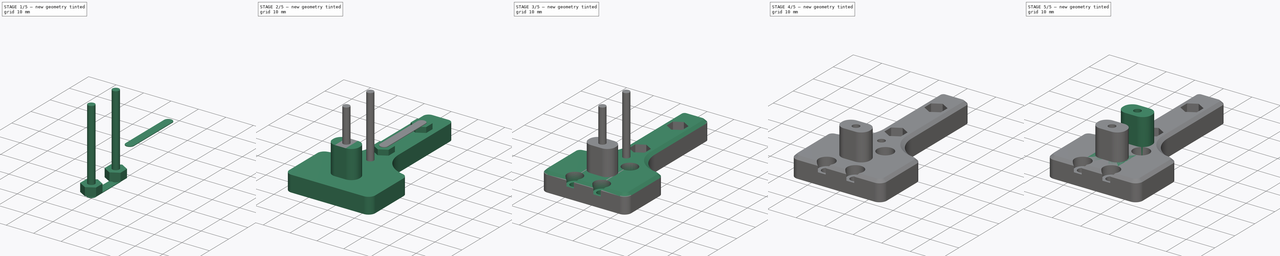
[diagram: build sequence overview — one tinted view per stage of 5, left to right]
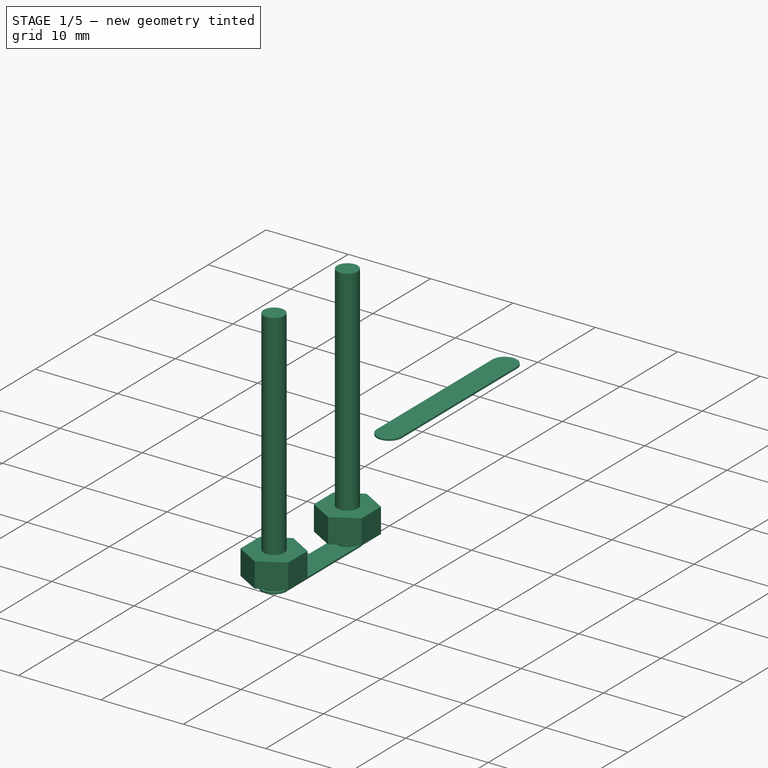
[diagram: stage 1 of 5 — iso view after this stage's code; geometry added in this stage tinted green]
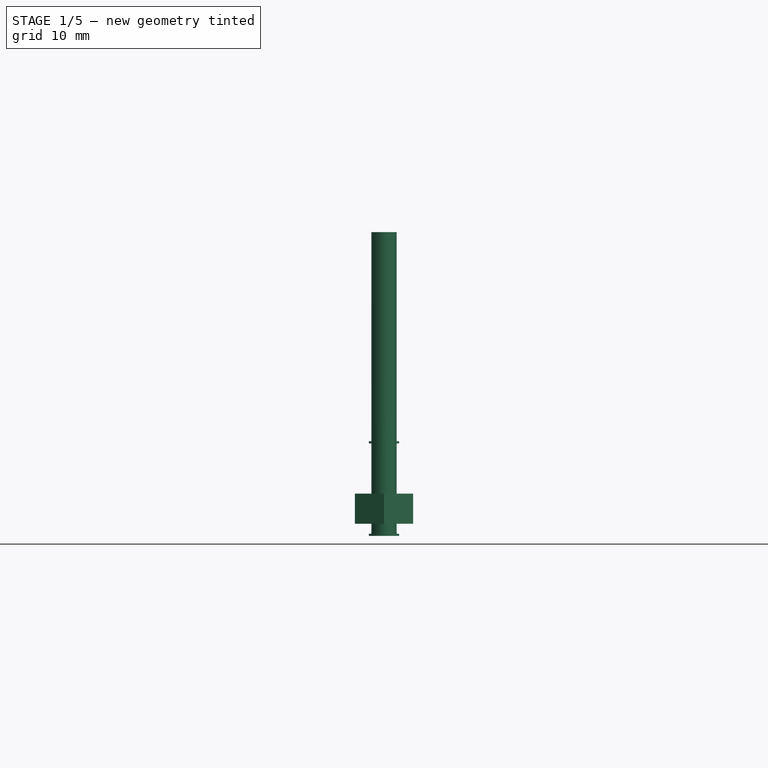
[diagram: stage 1 of 5 — front view after this stage's code; geometry added in this stage tinted green]
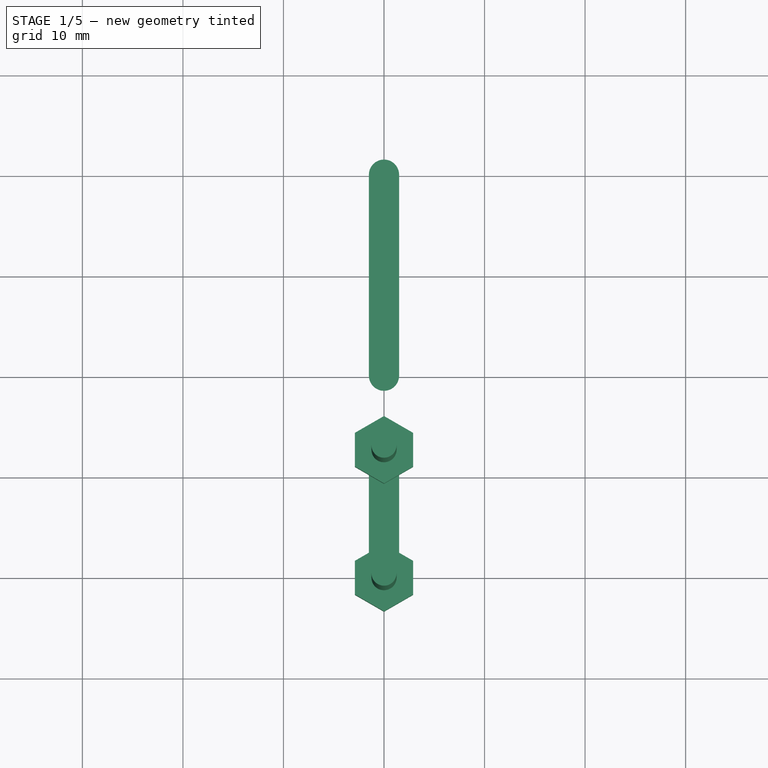
[diagram: stage 1 of 5 — top view after this stage's code; geometry added in this stage tinted green]
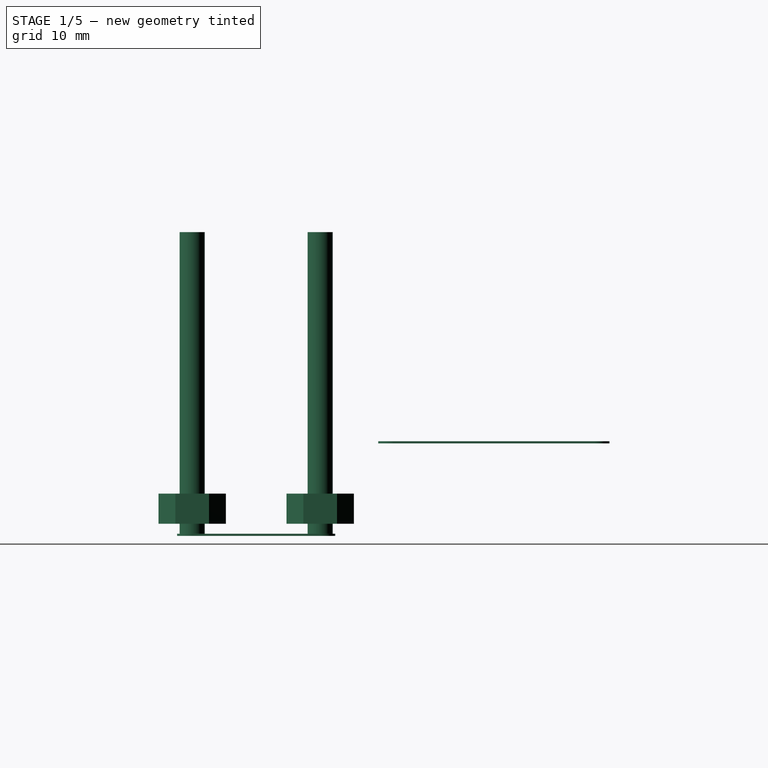
[diagram: stage 1 of 5 — right view after this stage's code; geometry added in this stage tinted green]
FCSTD DOCUMENT  (FreeCAD 0.20R29177 (Git))
Label: miniXY-XYCarriage
License: All rights reserved
LicenseURL: http://en.wikipedia.org/wiki/All_rights_reserved
objects: PartDesign::CoordinateSystem×10, Sketcher::SketchObject×10, PartDesign::Body×9, PartDesign::Pad×7, PartDesign::Boolean×7, App::Part×5, PartDesign::AdditivePrism×4, PartDesign::ShapeBinder×4, App::DocumentObjectGroup×3, App::Link×3, PartDesign::Hole×2, Part::FeaturePython×2, App::FeaturePython×1, PartDesign::AdditiveLoft×1
note: 70 computed .brp shape members not serialized (recipe doc carries the construction recipe); baked Part::Feature solids carry a one-line shape summary decoded from their .brp

FEATURE [PartDesign::Body] Body007  label="IdlerNutHoleSupport"
  Group = -> [Pad003,Sketch007]
  Origin = -> Origin012
  Tip = -> Pad003
FEATURE [Sketcher::SketchObject] Sketch008
  AttachmentOffset = pos=(0,0,-1) rot=(0,0,1;0rad)
  FullyConstrained = true
  MapMode = 5
  Placement = pos=(0,0,-1) rot=(0,0,1;0rad)
  Support = -> [XY_Plane011]
  expr: Constraints[8] = <<Variables>>.IdlerDiameter
  sketch-geometry (4):
    g0: ArcOfCircle CenterX=0 CenterY=0 CenterZ=0 NormalX=0 NormalY=0 NormalZ=1 AngleXU=0 Radius=1.5 StartAngle=3.14159 EndAngle=6.28319
    g1: ArcOfCircle CenterX=0 CenterY=12.73 CenterZ=0 NormalX=0 NormalY=0 NormalZ=1 AngleXU=0 Radius=1.5 StartAngle=2e-16 EndAngle=3.14159
    g2: LineSegment StartX=-1.5 StartY=12.73 StartZ=0 EndX=-1.5 EndY=0 EndZ=0
    g3: LineSegment StartX=1.5 StartY=12.73 StartZ=0 EndX=1.5 EndY=0 EndZ=0
  constraints (9):
    c: Coincident(g0,g-1)
    c: PointOnObject(g1,g-2)
    c: Tangent(g1,g2) = -1.5708
    c: Tangent(g1,g3) = 1.5708
    c: Tangent(g2,g0) = -1.5708
    c: Tangent(g3,g0) = 1.5708
    c: Equal(g0,g1)
    c: Diameter(g0) = 3
    c: DistanceY(g1) = 12.73
FEATURE [PartDesign::Pad] Pad004
  Direction = (0,0,1)
  Length = 0.2
  Length2 = 10
  Profile = -> Sketch008
  ReferenceAxis = -> Sketch008 [N_Axis]
  Reversed = true
  Type = 0
FEATURE [PartDesign::Pad] Pad005
  BaseFeature = -> Pad004
  Direction = (0,0,1)
  Length = 30
  Length2 = 10
  Profile = -> Sketch003
  ReferenceAxis = -> Sketch003 [N_Axis]
  Type = 0
FEATURE [PartDesign::AdditivePrism] Prism
  AttacherType = Attacher::AttachEngine3D
  AttachmentOffset = pos=(0,0,0) rot=(0,0,1;1.5708rad)
  BaseFeature = -> Pad005
  Circumradius = 3.35
  FirstAngle = 0
  Height = 3
  MapMode = 2
  Placement = pos=(0,0,0) rot=(0,0,1;1.5708rad)
  Polygon = 6
  SecondAngle = 0
  Support = -> [X_Axis011]
FEATURE [PartDesign::AdditivePrism] Prism001
  AttacherType = Attacher::AttachEngine3D
  AttachmentOffset = pos=(0,12.73,0) rot=(0,0,1;1.5708rad)
  BaseFeature = -> Prism
  Circumradius = 3.35
  FirstAngle = 0
  Height = 3
  MapMode = 2
  Placement = pos=(0,12.73,0) rot=(0,0,1;1.5708rad)
  Polygon = 6
  SecondAngle = 0
  Support = -> [X_Axis011]
  expr: .AttachmentOffset.Base.y = <<Variables>>.IdlerDiameter
FEATURE [PartDesign::Body] Body006  label="IdlerNutHoles"
  Group = -> [Pad004,Pad005,Prism,Sketch003,Sketch008,Prism001]
  Origin = -> Origin011
  Tip = -> Prism001
FEATURE [Sketcher::SketchObject] Sketch009
  AttachmentOffset = pos=(0,0,8) rot=(0,0,1;0rad)
  FullyConstrained = true
  MapMode = 5
  Placement = pos=(0,0,8) rot=(0,0,1;0rad)
  Support = -> [XY_Plane013]
  expr: .AttachmentOffset.Base.z = <<Variables>>.CarriageThickness + 1
  sketch-geometry (4):
    g0: ArcOfCircle CenterX=0 CenterY=40 CenterZ=0 NormalX=0 NormalY=0 NormalZ=1 AngleXU=0 Radius=1.5 StartAngle=-1.91456e-11 EndAngle=3.14159
    g1: ArcOfCircle CenterX=0 CenterY=20 CenterZ=0 NormalX=0 NormalY=0 NormalZ=1 AngleXU=0 Radius=1.5 StartAngle=3.14159 EndAngle=6.28319
    g2: LineSegment StartX=-1.5 StartY=40 StartZ=0 EndX=-1.5 EndY=20 EndZ=0
    g3: LineSegment StartX=1.5 StartY=20 StartZ=0 EndX=1.5 EndY=40 EndZ=0
  constraints (10):
    c: PointOnObject(g0,g-2)
    c: PointOnObject(g1,g-2)
    c: Tangent(g2,g0) = -1.5708
    c: Tangent(g0,g3) = -1.5708
    c: Tangent(g2,g1) = -1.5708
    c: Tangent(g3,g1) = -1.5708
    c: Equal(g0,g1)
    c: Diameter(g0) = 3
    c: DistanceY(g1) = 20
    c: DistanceY(g1,g0) = 20
FEATURE [PartDesign::Pad] Pad006
  Direction = (0,0,1)
  Length = 0.2
  Length2 = 10
  Profile = -> Sketch009
  ReferenceAxis = -> Sketch009 [N_Axis]
  Type = 0
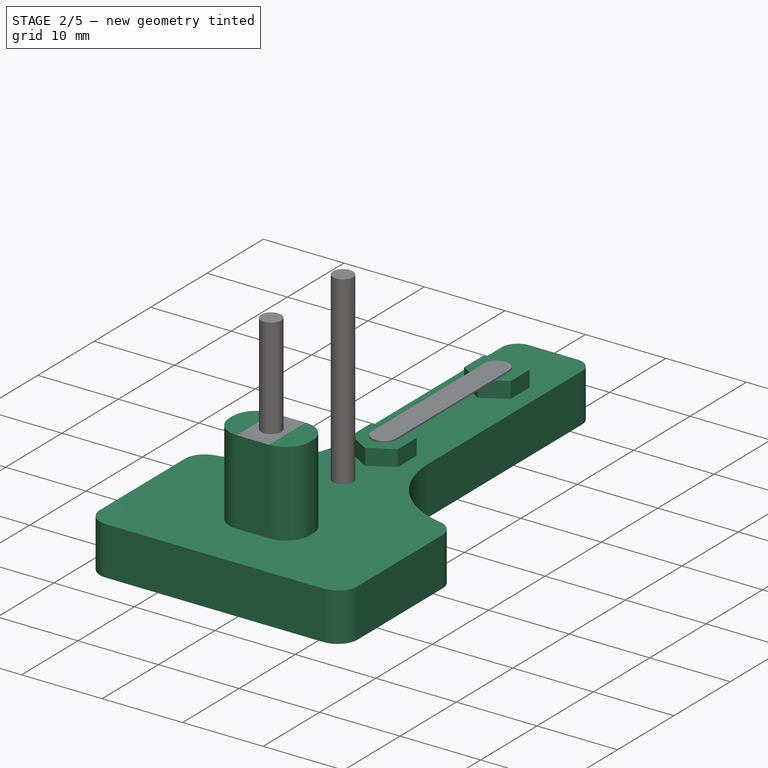
[diagram: stage 2 of 5 — iso view after this stage's code; geometry added in this stage tinted green]
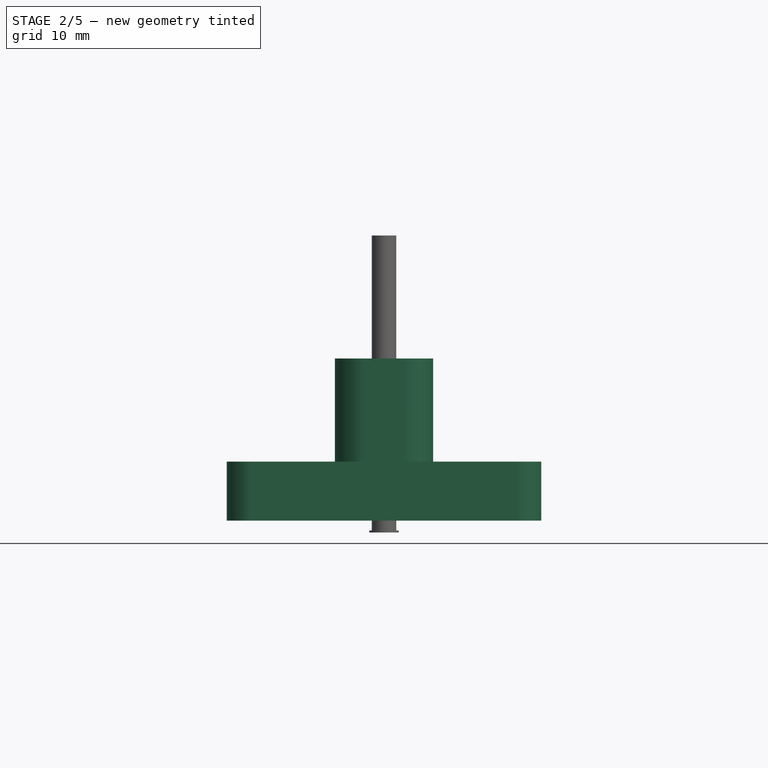
[diagram: stage 2 of 5 — front view after this stage's code; geometry added in this stage tinted green]
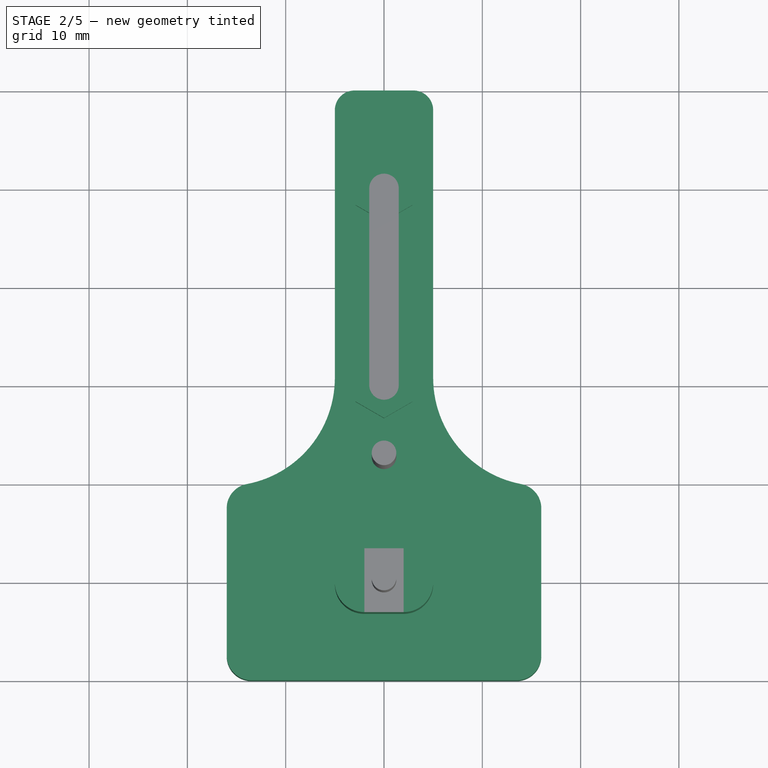
[diagram: stage 2 of 5 — top view after this stage's code; geometry added in this stage tinted green]
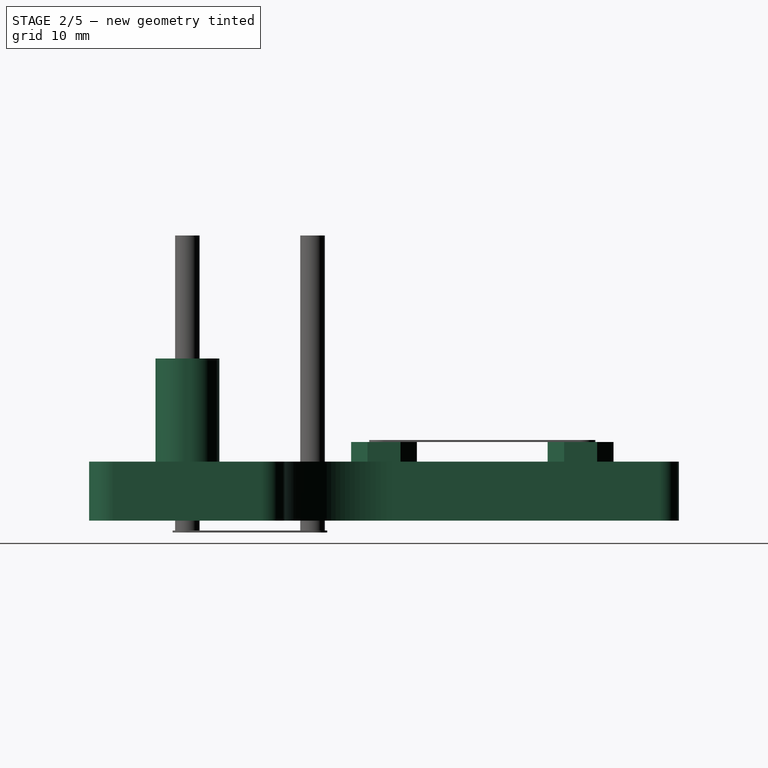
[diagram: stage 2 of 5 — right view after this stage's code; geometry added in this stage tinted green]
FEATURE [PartDesign::Body] Body001  label="CarriageBaseBrace"
  Origin = -> Origin002
FEATURE [PartDesign::Body] Body003  label="CarriageLeftBrace"
  Origin = -> Origin005
FEATURE [PartDesign::CoordinateSystem] LCS_Origin
  AttacherType = Attacher::AttachEngine3D
  MapMode = 2
  Support = -> [X_Axis006]
FEATURE [App::DocumentObjectGroup] Constraints
FEATURE [App::FeaturePython] Variables  # WARN: FeaturePython — macro-defined, semantics opaque (R4)
  CarriageThickness = 7
  GantorySpacing = 200
  IdlerDiameter = 12.73
  IdlerHeight = 8.5
  Type = App::PropertyContainer
  WasherThickness = 0.5
FEATURE [App::DocumentObjectGroup] Configurations
FEATURE [PartDesign::CoordinateSystem] LCS_CarriageLeftPosition
  AttacherType = Attacher::AttachEngine3D
  AttachmentOffset = pos=(-100,0,0) rot=(0,0,1;0rad)
  MapMode = 2
  Placement = pos=(-100,0,0) rot=(0,0,1;0rad)
  Support = -> [X_Axis014]
  expr: .AttachmentOffset.Base.x = -<<Variables>>.GantorySpacing / 2
FEATURE [PartDesign::CoordinateSystem] LCS_CarriageRightPosition
  AttacherType = Attacher::AttachEngine3D
  AttachmentOffset = pos=(100,0,0) rot=(0,0,1;0rad)
  MapMode = 2
  Placement = pos=(100,0,0) rot=(0,0,1;0rad)
  Support = -> [X_Axis014]
  expr: .AttachmentOffset.Base.x = <<Variables>>.GantorySpacing / 2
FEATURE [Sketcher::SketchObject] Sketch
  AttachmentOffset = pos=(0,0,6) rot=(0,0,1;0rad)
  FullyConstrained = true
  MapMode = 5
  Placement = pos=(0,0,6) rot=(0,0,1;0rad)
  Support = -> [XY_Plane001]
  expr: .AttachmentOffset.Base.z = <<Variables>>.CarriageThickness - 1
  sketch-geometry (18):
    g0: LineSegment StartX=-16 StartY=-7.5 StartZ=0 EndX=-16 EndY=7.5 EndZ=0
    g1: LineSegment StartX=16 StartY=7.5 StartZ=0 EndX=16 EndY=-7.5 EndZ=0
    g2: LineSegment StartX=13.5 StartY=-10 StartZ=0 EndX=-13.5 EndY=-10 EndZ=0
    g3: LineSegment StartX=-5 StartY=20.7665 StartZ=0 EndX=-5 EndY=48 EndZ=0
    g4: LineSegment StartX=-3 StartY=50 StartZ=0 EndX=3 EndY=50 EndZ=0
    g5: LineSegment StartX=5 StartY=48 StartZ=0 EndX=5 EndY=20.7665 EndZ=0
    g6: ArcOfCircle CenterX=-13.5 CenterY=-7.5 CenterZ=0 NormalX=0 NormalY=0 NormalZ=1 AngleXU=0 Radius=2.5 StartAngle=3.14159 EndAngle=4.71239
    g7: GeomPoint X=-16 Y=-10 Z=0
    g8: ArcOfCircle CenterX=13.5 CenterY=-7.5 CenterZ=0 NormalX=0 NormalY=0 NormalZ=1 AngleXU=0 Radius=2.5 StartAngle=4.71239 EndAngle=6.28319
    g9: GeomPoint X=16 Y=-10 Z=0
    g10: ArcOfCircle CenterX=13.5 CenterY=7.5 CenterZ=0 NormalX=0 NormalY=0 NormalZ=1 AngleXU=0 Radius=2.5 StartAngle=0 EndAngle=1.38454
    g11: ArcOfCircle CenterX=16 CenterY=20.7665 CenterZ=0 NormalX=0 NormalY=0 NormalZ=1 AngleXU=0 Radius=11 StartAngle=3.14159 EndAngle=4.52613
    g12: ArcOfCircle CenterX=-16 CenterY=20.7665 CenterZ=0 NormalX=0 NormalY=0 NormalZ=1 AngleXU=0 Radius=11 StartAngle=4.89865 EndAngle=6.28319
    g13: ArcOfCircle CenterX=-13.5 CenterY=7.5 CenterZ=0 NormalX=0 NormalY=0 NormalZ=1 AngleXU=0 Radius=2.5 StartAngle=1.75706 EndAngle=3.14159
    g14: ArcOfCircle CenterX=-3 CenterY=48 CenterZ=0 NormalX=0 NormalY=0 NormalZ=1 AngleXU=0 Radius=2 StartAngle=1.5708 EndAngle=3.14159
    g15: GeomPoint X=-5 Y=50 Z=0
    g16: ArcOfCircle CenterX=3 CenterY=48 CenterZ=0 NormalX=0 NormalY=0 NormalZ=1 AngleXU=0 Radius=2 StartAngle=-2.771e-13 EndAngle=1.5708
    g17: GeomPoint X=5 Y=50 Z=0
  constraints (39):
    c: PointOnObject(g7,g0)
    c: PointOnObject(g7,g2)
    c: Tangent(g0,g6) = 1.5708
    c: Tangent(g2,g6) = 1.5708
    c: PointOnObject(g9,g2)
    c: PointOnObject(g9,g1)
    c: Tangent(g2,g8) = 1.5708
    c: Tangent(g1,g8) = 1.5708
    c: Tangent(g1,g10) = 1.5708
    c: Tangent(g5,g11) = -1.5708
    c: Tangent(g3,g12) = -1.5708
    c: Tangent(g0,g13) = 1.5708
    c: PointOnObject(g15,g3)
    c: PointOnObject(g15,g4)
    c: Tangent(g3,g14) = 1.5708
    c: Tangent(g4,g14) = 1.5708
    c: PointOnObject(g17,g4)
    c: PointOnObject(g17,g5)
    c: Tangent(g4,g16) = 1.5708
    c: Tangent(g5,g16) = 1.5708
    c: Equal(g6,g13)
    c: Equal(g6,g8)
    c: Equal(g14,g16)
    c: Tangent(g13,g12) = 1.5708
    c: Tangent(g10,g11) = 1.5708
    c: PointOnObject(g12,g0)
    c: Radius(g14) = 2
    c: Radius(g6) = 2.5
    c: Symmetric(g14,g16,g-2)
    c: Symmetric(g6,g8,g-2)
    c: Symmetric(g13,g6,g-1)
    c: Symmetric(g13,g10,g-2)
    c: DistanceX(g14,g16) = 6
    c: DistanceY(g14) = 48
    c: Symmetric(g12,g11,g-2)
    c: DistanceY(g6,g13) = 15
    c: DistanceX(g6,g8) = 27
    c: Vertical(g3)
    c: Equal(g6,g10)
FEATURE [Sketcher::SketchObject] Sketch001
  AttachmentOffset = pos=(0,0,7) rot=(0,0,1;0rad)
  FullyConstrained = true
  MapMode = 5
  Placement = pos=(0,0,7) rot=(0,0,1;0rad)
  Support = -> [XY_Plane001]
  expr: .AttachmentOffset.Base.z = <<Variables>>.CarriageThickness
  expr: Constraints[26] = Sketch.Constraints[26] - 1mm
  expr: Constraints[27] = Sketch.Constraints[27] - 1mm
  expr: Constraints[32] = Sketch.Constraints[32]
  expr: Constraints[33] = Sketch.Constraints[33]
  expr: Constraints[35] = Sketch.Constraints[35]
  expr: Constraints[36] = Sketch.Constraints[36]
  sketch-geometry (18):
    g0: LineSegment StartX=-15 StartY=-7.5 StartZ=0 EndX=-15 EndY=7.5 EndZ=0
    g1: LineSegment StartX=15 StartY=7.5 StartZ=0 EndX=15 EndY=-7.5 EndZ=0
    g2: LineSegment StartX=13.5 StartY=-9 StartZ=0 EndX=-13.5 EndY=-9 EndZ=0
    g3: LineSegment StartX=-4 StartY=19.9097 StartZ=0 EndX=-4 EndY=48 EndZ=0
    g4: LineSegment StartX=-3 StartY=49 StartZ=0 EndX=3 EndY=49 EndZ=0
    g5: LineSegment StartX=4 StartY=48 StartZ=0 EndX=4 EndY=19.9097 EndZ=0
    g6: ArcOfCircle CenterX=-13.5 CenterY=-7.5 CenterZ=0 NormalX=0 NormalY=0 NormalZ=1 AngleXU=0 Radius=1.5 StartAngle=3.14159 EndAngle=4.71239
    g7: GeomPoint X=-15 Y=-9 Z=0
    g8: ArcOfCircle CenterX=13.5 CenterY=-7.5 CenterZ=0 NormalX=0 NormalY=0 NormalZ=1 AngleXU=0 Radius=1.5 StartAngle=4.71239 EndAngle=6.28319
    g9: GeomPoint X=15 Y=-9 Z=0
    g10: ArcOfCircle CenterX=13.5 CenterY=7.5 CenterZ=0 NormalX=0 NormalY=0 NormalZ=1 AngleXU=0 Radius=1.5 StartAngle=1e-16 EndAngle=1.45051
    g11: ArcOfCircle CenterX=15 CenterY=19.9097 CenterZ=0 NormalX=0 NormalY=0 NormalZ=1 AngleXU=0 Radius=11 StartAngle=3.14159 EndAngle=4.5921
    g12: ArcOfCircle CenterX=-15 CenterY=19.9097 CenterZ=0 NormalX=0 NormalY=0 NormalZ=1 AngleXU=0 Radius=11 StartAngle=4.83268 EndAngle=6.28319
    g13: ArcOfCircle CenterX=-13.5 CenterY=7.5 CenterZ=0 NormalX=0 NormalY=0 NormalZ=1 AngleXU=0 Radius=1.5 StartAngle=1.69109 EndAngle=3.14159
    g14: ArcOfCircle CenterX=-3 CenterY=48 CenterZ=0 NormalX=0 NormalY=0 NormalZ=1 AngleXU=0 Radius=1 StartAngle=1.5708 EndAngle=3.14159
    g15: GeomPoint X=-4 Y=49 Z=0
    g16: ArcOfCircle CenterX=3 CenterY=48 CenterZ=0 NormalX=0 NormalY=0 NormalZ=1 AngleXU=0 Radius=1 StartAngle=1e-16 EndAngle=1.5708
    g17: GeomPoint X=4 Y=49 Z=0
  constraints (39):
    c: PointOnObject(g7,g0)
    c: PointOnObject(g7,g2)
    c: Tangent(g0,g6) = 1.5708
    c: Tangent(g2,g6) = 1.5708
    c: PointOnObject(g9,g2)
    c: PointOnObject(g9,g1)
    c: Tangent(g2,g8) = 1.5708
    c: Tangent(g1,g8) = 1.5708
    c: Tangent(g1,g10) = 1.5708
    c: Tangent(g5,g11) = -1.5708
    c: Tangent(g3,g12) = -1.5708
    c: Tangent(g0,g13) = 1.5708
    c: PointOnObject(g15,g3)
    c: PointOnObject(g15,g4)
    c: Tangent(g3,g14) = 1.5708
    c: Tangent(g4,g14) = 1.5708
    c: PointOnObject(g17,g4)
    c: PointOnObject(g17,g5)
    c: Tangent(g4,g16) = 1.5708
    c: Tangent(g5,g16) = 1.5708
    c: Equal(g6,g13)
    c: Equal(g6,g8)
    c: Equal(g14,g16)
    c: Tangent(g13,g12) = 1.5708
    c: Tangent(g10,g11) = 1.5708
    c: PointOnObject(g12,g0)
    c: Radius(g14) = 1
    c: Radius(g6) = 1.5
    c: Symmetric(g14,g16,g-2)
    c: Symmetric(g6,g8,g-2)
    c: Symmetric(g13,g6,g-1)
    c: Symmetric(g13,g10,g-2)
    c: DistanceX(g14,g16) = 6
    c: DistanceY(g14) = 48
    c: Symmetric(g12,g11,g-2)
    c: DistanceY(g6,g13) = 15
    c: DistanceX(g6,g8) = 27
    c: Vertical(g3)
    c: Equal(g6,g10)
FEATURE [PartDesign::Pad] Pad
  Direction = (0,0,1)
  Length = 6
  Length2 = 10
  Profile = -> Sketch
  ReferenceAxis = -> Sketch [N_Axis]
  Reversed = true
  Type = 0
  expr: Length = <<Variables>>.CarriageThickness - 1
FEATURE [Sketcher::SketchObject] Sketch006
  FullyConstrained = true
  MapMode = 5
  Support = -> [XY_Plane008]
  sketch-geometry (12):
    g0: LineSegment StartX=-2 StartY=3.25 StartZ=0 EndX=2 EndY=3.25 EndZ=0
    g1: LineSegment StartX=5 StartY=0.25 StartZ=0 EndX=5 EndY=-0.25 EndZ=0
    g2: LineSegment StartX=2 StartY=-3.25 StartZ=0 EndX=-2 EndY=-3.25 EndZ=0
    g3: LineSegment StartX=-5 StartY=-0.25 StartZ=0 EndX=-5 EndY=0.25 EndZ=0
    g4: ArcOfCircle CenterX=-2 CenterY=0.25 CenterZ=0 NormalX=0 NormalY=0 NormalZ=1 AngleXU=0 Radius=3 StartAngle=1.5708 EndAngle=3.14159
    g5: GeomPoint X=-5 Y=3.25 Z=0
    g6: ArcOfCircle CenterX=2 CenterY=0.25 CenterZ=0 NormalX=0 NormalY=0 NormalZ=1 AngleXU=0 Radius=3 StartAngle=0 EndAngle=1.5708
    g7: GeomPoint X=5 Y=3.25 Z=0
    g8: ArcOfCircle CenterX=-2 CenterY=-0.25 CenterZ=0 NormalX=0 NormalY=0 NormalZ=1 AngleXU=0 Radius=3 StartAngle=3.14159 EndAngle=4.71239
    g9: GeomPoint X=-5 Y=-3.25 Z=0
    g10: ArcOfCircle CenterX=2 CenterY=-0.25 CenterZ=0 NormalX=0 NormalY=0 NormalZ=1 AngleXU=0 Radius=3 StartAngle=4.71239 EndAngle=6.28319
    g11: GeomPoint X=5 Y=-3.25 Z=0
  constraints (27):
    c: Horizontal(g0)
    c: Horizontal(g2)
    c: Vertical(g1)
    c: Vertical(g3)
    c: PointOnObject(g5,g0)
    c: PointOnObject(g5,g3)
    c: Tangent(g0,g4) = 1.5708
    c: Tangent(g3,g4) = 1.5708
    c: PointOnObject(g7,g0)
    c: PointOnObject(g7,g1)
    c: Tangent(g0,g6) = 1.5708
    c: Tangent(g1,g6) = 1.5708
    c: PointOnObject(g9,g2)
    c: PointOnObject(g9,g3)
    c: Tangent(g2,g8) = 1.5708
    c: Tangent(g3,g8) = 1.5708
    c: PointOnObject(g11,g2)
    c: PointOnObject(g11,g1)
    c: Tangent(g2,g10) = 1.5708
    c: Tangent(g1,g10) = 1.5708
    c: Equal(g4,g6)
    c: Equal(g4,g10)
    c: Equal(g4,g8)
    c: Radius(g4) = 3
    c: Symmetric(g5,g11,g-1)
    c: DistanceY(g9,g5) = 6.5
    c: DistanceX(g5,g7) = 10
FEATURE [PartDesign::Pad] Pad002
  Direction = (0,0,1)
  Length = 16.5
  Length2 = 10
  Profile = -> Sketch006
  ReferenceAxis = -> Sketch006 [N_Axis]
  Type = 0
  expr: Length = <<Variables>>.CarriageThickness + <<Variables>>.WasherThickness * 2 + <<Variables>>.IdlerHeight
FEATURE [PartDesign::AdditivePrism] Prism003
  AttacherType = Attacher::AttachEngine3D
  AttachmentOffset = pos=(0,20,8) rot=(0.707107,0.707107,0;3.14159rad)
  BaseFeature = -> Pad006
  Circumradius = 3.35
  FirstAngle = 0
  Height = 4
  MapMode = 2
  Placement = pos=(0,20,8) rot=(0.707107,0.707107,0;3.14159rad)
  Polygon = 6
  SecondAngle = 0
  Support = -> [X_Axis013]
  expr: .AttachmentOffset.Base.z = <<Variables>>.CarriageThickness + 1
FEATURE [PartDesign::AdditivePrism] Prism004
  AttacherType = Attacher::AttachEngine3D
  AttachmentOffset = pos=(0,40,8) rot=(0.707107,0.707107,0;3.14159rad)
  BaseFeature = -> Prism003
  Circumradius = 3.35
  FirstAngle = 0
  Height = 4
  MapMode = 2
  Placement = pos=(0,40,8) rot=(0.707107,0.707107,0;3.14159rad)
  Polygon = 6
  SecondAngle = 0
  Support = -> [X_Axis013]
  expr: .AttachmentOffset.Base.z = <<Variables>>.CarriageThickness + 1
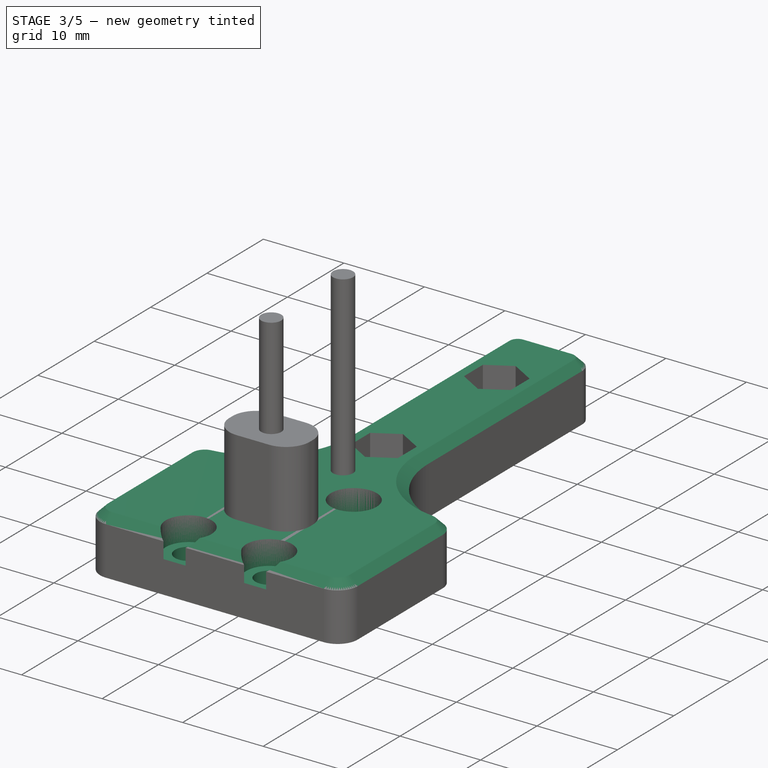
[diagram: stage 3 of 5 — iso view after this stage's code; geometry added in this stage tinted green]
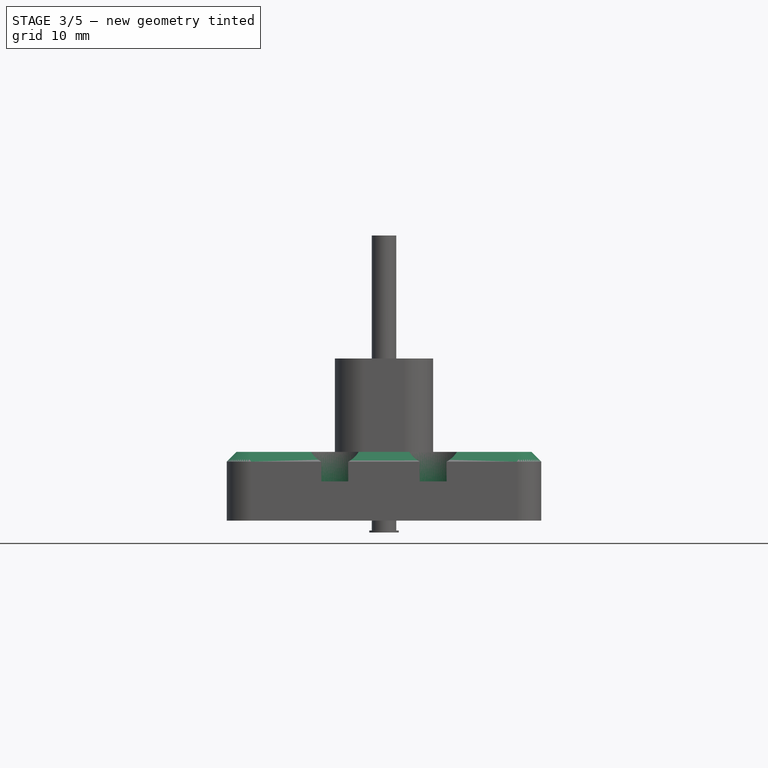
[diagram: stage 3 of 5 — front view after this stage's code; geometry added in this stage tinted green]
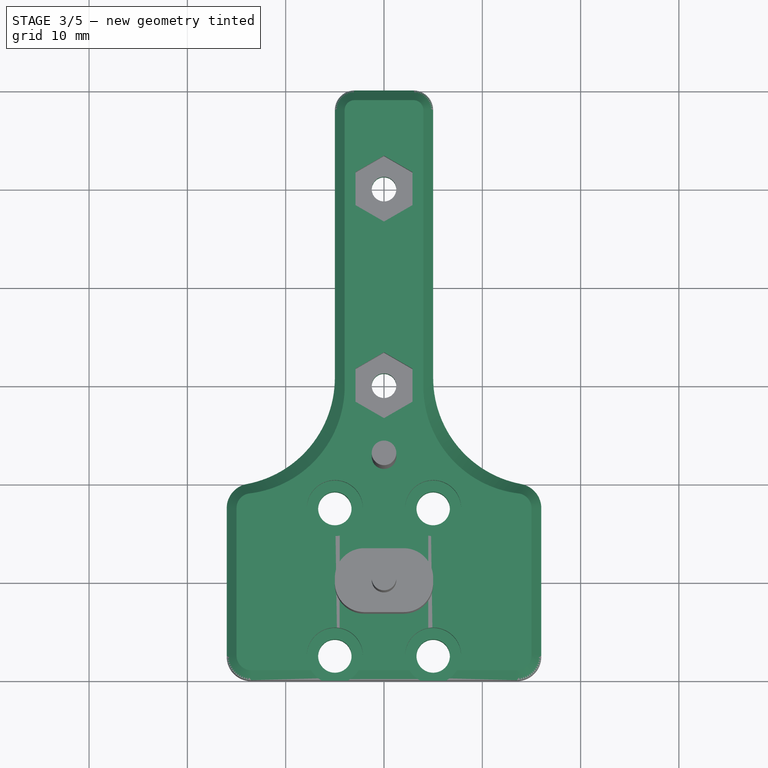
[diagram: stage 3 of 5 — top view after this stage's code; geometry added in this stage tinted green]
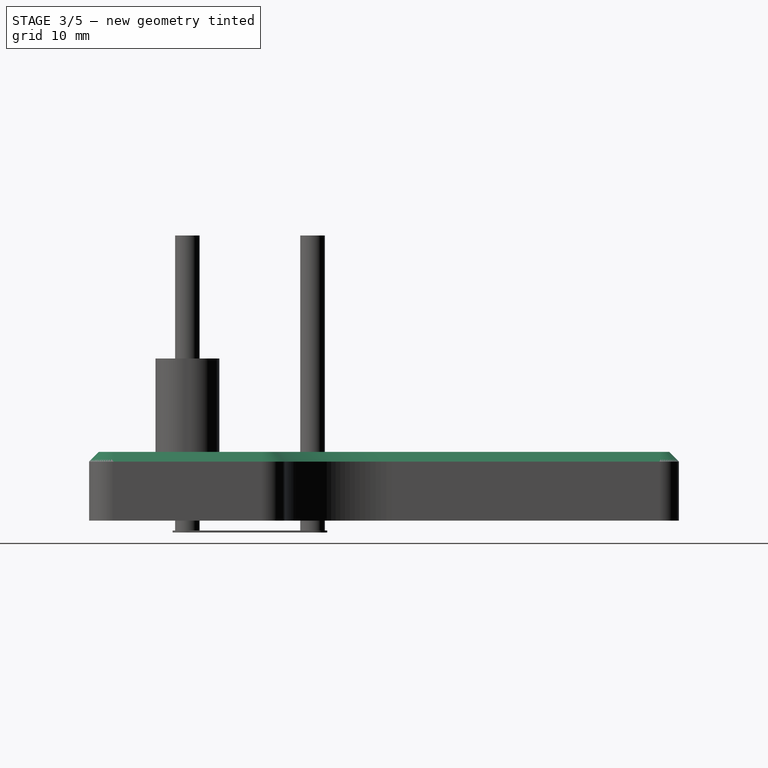
[diagram: stage 3 of 5 — right view after this stage's code; geometry added in this stage tinted green]
FEATURE [PartDesign::AdditiveLoft] AdditiveLoft
  BaseFeature = -> Pad
  Closed = false
  Profile = -> Sketch
  Ruled = false
  Sections = -> [Sketch001]
FEATURE [Sketcher::SketchObject] Sketch002
  AttachmentOffset = pos=(0,0,7) rot=(0,0,1;0rad)
  FullyConstrained = true
  MapMode = 5
  Placement = pos=(0,0,7) rot=(0,0,1;0rad)
  Support = -> [XY_Plane001]
  expr: .AttachmentOffset.Base.z = <<Variables>>.CarriageThickness
  sketch-geometry (4):
    g0: Circle CenterX=-5 CenterY=7.5 CenterZ=0 NormalX=0 NormalY=0 NormalZ=1 AngleXU=0 Radius=1.5
    g1: Circle CenterX=5 CenterY=7.5 CenterZ=0 NormalX=0 NormalY=0 NormalZ=1 AngleXU=0 Radius=1.5
    g2: Circle CenterX=-5 CenterY=-7.5 CenterZ=0 NormalX=0 NormalY=0 NormalZ=1 AngleXU=0 Radius=1.5
    g3: Circle CenterX=5 CenterY=-7.5 CenterZ=0 NormalX=0 NormalY=0 NormalZ=1 AngleXU=0 Radius=1.5
  constraints (9):
    c: Symmetric(g0,g1,g-2)
    c: Symmetric(g0,g2,g-1)
    c: Symmetric(g1,g3,g-1)
    c: Equal(g0,g1)
    c: Equal(g0,g2)
    c: Equal(g0,g3)
    c: Diameter(g0) = 3
    c: DistanceX(g0,g1) = 10
    c: DistanceY(g2,g0) = 15
FEATURE [PartDesign::Body] Body005  label="CarriageRightBrace"
  Origin = -> Origin009
FEATURE [Sketcher::SketchObject] Sketch003  label="SketchIdlerHole"
  AttachmentOffset = pos=(0,0,-1) rot=(0,0,1;0rad)
  FullyConstrained = true
  MapMode = 5
  Placement = pos=(0,0,-1) rot=(0,0,1;0rad)
  Support = -> [XY_Plane011]
  expr: Constraints[2] = <<Variables>>.IdlerDiameter
  sketch-geometry (2):
    g0: Circle CenterX=0 CenterY=0 CenterZ=0 NormalX=0 NormalY=0 NormalZ=1 AngleXU=0 Radius=1.25
    g1: Circle CenterX=0 CenterY=12.73 CenterZ=0 NormalX=0 NormalY=0 NormalZ=1 AngleXU=0 Radius=1.25
  constraints (5):
    c: Coincident(g0,g-1)
    c: PointOnObject(g1,g-2)
    c: DistanceY(g1) = 12.73
    c: Equal(g1,g0)
    c: Diameter(g1) = 2.5
FEATURE [PartDesign::Hole] Hole
  BaseFeature = -> AdditiveLoft
  CustomThreadClearance = 0
  Depth = 25
  DepthType = 0
  Diameter = 3.4
  DrillForDepth = false
  DrillPoint = 1
  DrillPointAngle = 118
  HoleCutCountersinkAngle = 90
  HoleCutCustomValues = false
  HoleCutDepth = 3
  HoleCutDiameter = 5.7
  HoleCutType = 1
  ModelThread = false
  Profile = -> Sketch002
  Tapered = false
  TaperedAngle = 90
  ThreadClass = 0
  ThreadDepth = 25
  ThreadDepthType = 0
  ThreadDirection = 0
  ThreadFit = 0
  ThreadSize = 9
  ThreadType = 1
  Threaded = false
  UseCustomThreadClearance = false
FEATURE [Sketcher::SketchObject] Sketch004
  FullyConstrained = true
  MapMode = 5
  Support = -> [XY_Plane001]
  sketch-geometry (2):
    g0: Circle CenterX=0 CenterY=20 CenterZ=0 NormalX=0 NormalY=0 NormalZ=1 AngleXU=0 Radius=1.5
    g1: Circle CenterX=0 CenterY=40 CenterZ=0 NormalX=0 NormalY=0 NormalZ=1 AngleXU=0 Radius=1.5
  constraints (6):
    c: PointOnObject(g1,g-2)
    c: PointOnObject(g0,g-2)
    c: Equal(g1,g0)
    c: Diameter(g1) = 3
    c: DistanceY(g0) = 20
    c: DistanceY(g0,g1) = 20
FEATURE [PartDesign::Hole] Hole001
  BaseFeature = -> Hole
  CustomThreadClearance = 0
  Depth = 25
  DepthType = 0
  Diameter = 2.5
  DrillForDepth = false
  DrillPoint = 1
  DrillPointAngle = 118
  HoleCutCountersinkAngle = 90
  HoleCutCustomValues = false
  HoleCutDepth = 0
  HoleCutDiameter = 6.1
  HoleCutType = 0
  ModelThread = false
  Profile = -> Sketch004
  Reversed = true
  Tapered = false
  TaperedAngle = 90
  ThreadClass = 0
  ThreadDepth = 25
  ThreadDepthType = 0
  ThreadDirection = 0
  ThreadFit = 0
  ThreadSize = 9
  ThreadType = 1
  Threaded = true
  UseCustomThreadClearance = false
FEATURE [PartDesign::Body] Body008  label="RailNutHoles"
  Group = -> [Sketch009,Pad006,Prism003,Prism004]
  Origin = -> Origin013
  Tip = -> Prism004
FEATURE [PartDesign::Boolean] Boolean
  BaseFeature = -> Hole001
  Group = -> [Body008]
  Type = 1
FEATURE [Part::FeaturePython] Clone005  label="CarriageBaseMain002"  # Draft clone (typed FeaturePython)
  AttacherType = Attacher::AttachEngine3D
  Fuse = false
  Objects = -> [Body]
  Scale = (1,1,1)
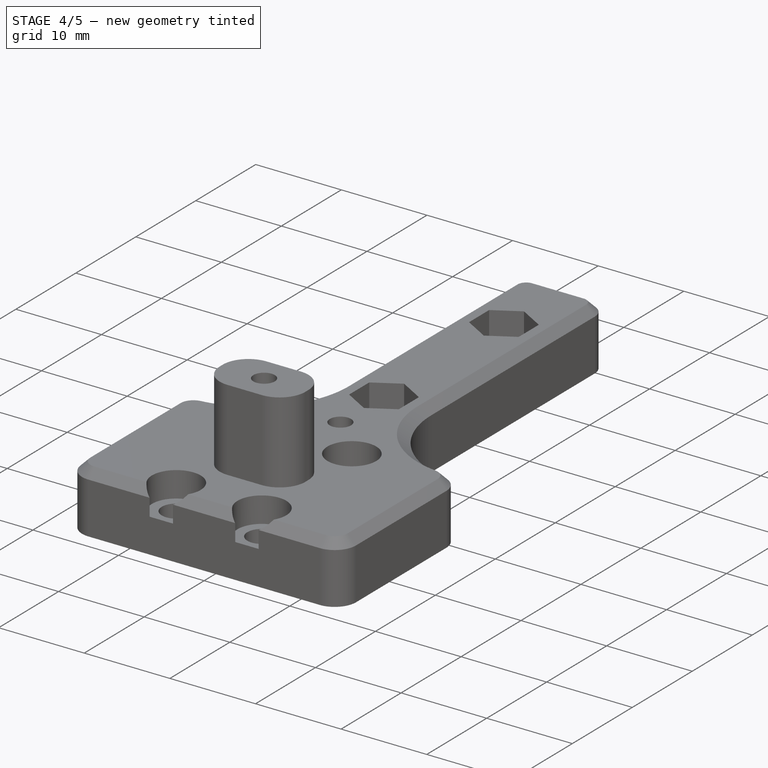
[diagram: stage 4 of 5 — iso view after this stage's code; geometry added in this stage tinted green]
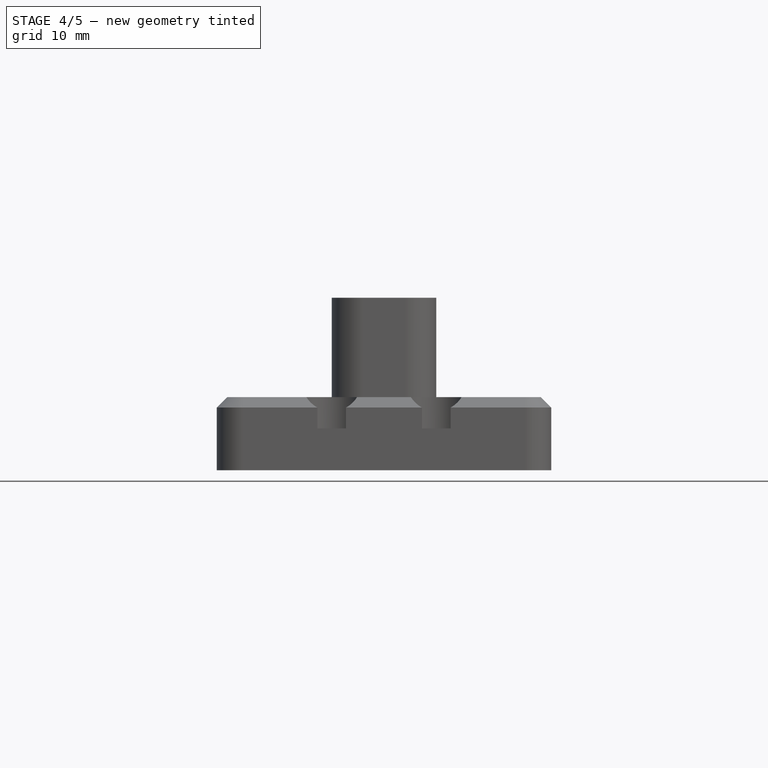
[diagram: stage 4 of 5 — front view after this stage's code; geometry added in this stage tinted green]
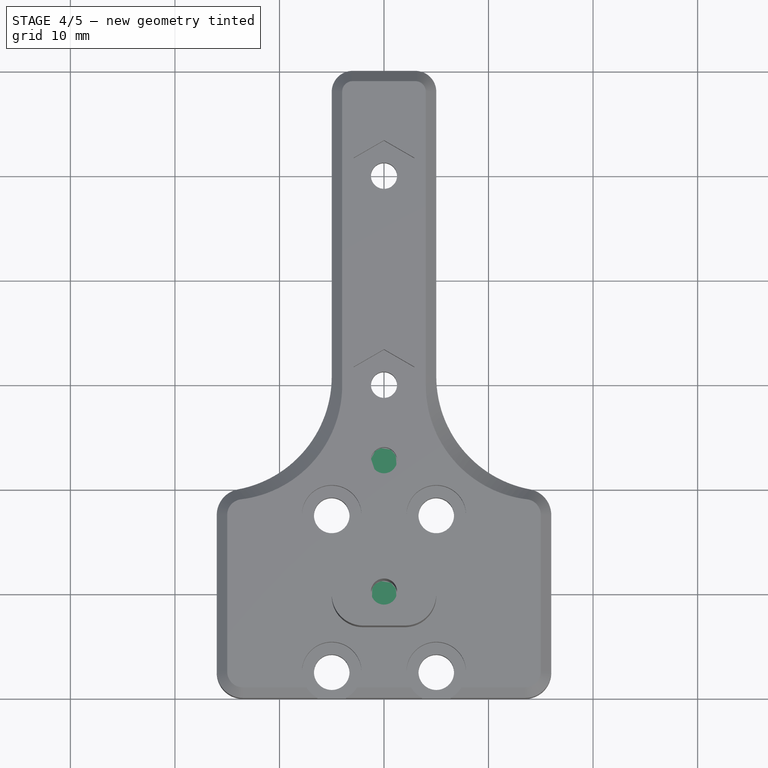
[diagram: stage 4 of 5 — top view after this stage's code; geometry added in this stage tinted green]
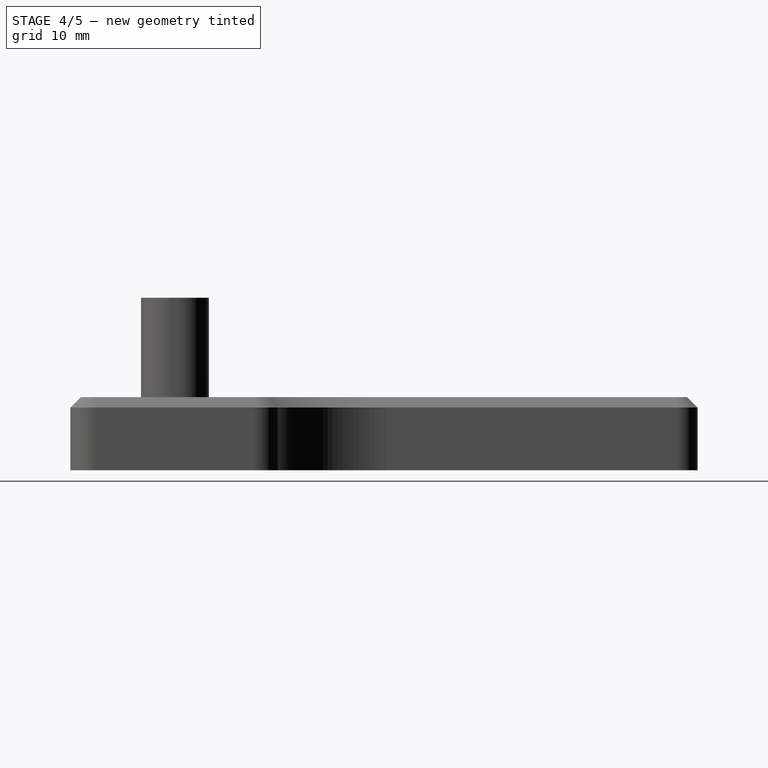
[diagram: stage 4 of 5 — right view after this stage's code; geometry added in this stage tinted green]
FEATURE [Sketcher::SketchObject] Sketch007
  AttachmentOffset = pos=(0,0,3) rot=(0,0,1;0rad)
  FullyConstrained = true
  MapMode = 5
  Placement = pos=(0,0,3) rot=(0,0,1;0rad)
  Support = -> [XY_Plane012]
  expr: Constraints[9] = <<Variables>>.IdlerDiameter
  sketch-geometry (4):
    g0: ArcOfCircle CenterX=0 CenterY=0 CenterZ=0 NormalX=0 NormalY=0 NormalZ=1 AngleXU=0 Radius=3.5 StartAngle=1.71414 EndAngle=7.71063
    g1: ArcOfCircle CenterX=-2.1e-15 CenterY=12.73 CenterZ=0 NormalX=0 NormalY=0 NormalZ=1 AngleXU=0 Radius=3.5 StartAngle=4.85574 EndAngle=10.8522
    g2: LineSegment StartX=-0.5 StartY=9.2659 StartZ=0 EndX=-0.5 EndY=3.4641 EndZ=0
    g3: LineSegment StartX=0.5 StartY=9.2659 StartZ=0 EndX=0.5 EndY=3.4641 EndZ=0
  constraints (12):
    c: Coincident(g2,g1)
    c: Coincident(g2,g0)
    c: Coincident(g3,g1)
    c: Coincident(g3,g0)
    c: Coincident(g0,g-1)
    c: Symmetric(g1,g1,g-2)
    c: Symmetric(g0,g0,g-2)
    c: Equal(g1,g0)
    c: Diameter(g1) = 7
    c: DistanceY(g1) = 12.73
    c: DistanceX(g1,g1) = 1
    c: Vertical(g2)
FEATURE [PartDesign::Pad] Pad003
  Direction = (0,0,1)
  Length = 0.2
  Length2 = 10
  Profile = -> Sketch007
  ReferenceAxis = -> Sketch007 [N_Axis]
  Type = 0
FEATURE [PartDesign::Boolean] Boolean002
  BaseFeature = -> Pad002
  Group = -> [Clone005]
  Type = 0
FEATURE [PartDesign::Body] Body002  label="CarriageLeftMain"
  Group = -> [Sketch005,Pad001,Boolean001,Boolean003,Boolean004]
  Origin = -> Origin004
  Tip = -> Boolean004
FEATURE [PartDesign::ShapeBinder] ShapeBinder002
  Support = -> [Body007]
  TraceSupport = false
FEATURE [PartDesign::ShapeBinder] ShapeBinder003
  Support = -> [Body006]
  TraceSupport = false
FEATURE [PartDesign::Boolean] Boolean005
  BaseFeature = -> Boolean002
  Group = -> [ShapeBinder003]
  Type = 1
FEATURE [PartDesign::Boolean] Boolean006
  BaseFeature = -> Boolean005
  Group = -> [ShapeBinder002]
  Refine = true
  Type = 0
FEATURE [PartDesign::Body] Body004  label="CarriageRightMain"
  Group = -> [Sketch006,Pad002,Boolean002,Boolean005,Boolean006]
  Origin = -> Origin008
  Tip = -> Boolean006
FEATURE [PartDesign::CoordinateSystem] LCS_CarriageLeftOrigin
  AttacherType = Attacher::AttachEngine3D
  AttachmentOffset = pos=(0,0,0) rot=(0,0,1;1.5708rad)
  MapMode = 2
  Placement = pos=(0,0,0) rot=(0,0,1;1.5708rad)
  Support = -> [X_Axis003]
FEATURE [App::Part] Part001  label="CarriageLeft"
  Group = -> [Body002,Body003,LCS_CarriageLeftOrigin]
  Origin = -> Origin003
FEATURE [PartDesign::CoordinateSystem] LCS_CarriageRightOrigin
  AttacherType = Attacher::AttachEngine3D
  AttachmentOffset = pos=(0,0,0) rot=(0,0,-1;1.5708rad)
  MapMode = 2
  Placement = pos=(0,0,0) rot=(0,0,-1;1.5708rad)
  Support = -> [X_Axis007]
FEATURE [App::Part] Part002  label="CarriageRight"
  Group = -> [Body004,Body005,LCS_CarriageRightOrigin]
  Origin = -> Origin007
FEATURE [App::Link] CarriageLeft  label="CarriageLeft001"
  AssemblyType = Part::Link
  AttachedBy = #LCS_CarriageLeftOrigin
  AttachedTo = CarriageLayout#LCS_CarriageLeftPosition
  LinkPlacement = pos=(-100,0,0) rot=(0,0,-1;1.5708rad)
  LinkedObject = -> Part001
  Placement = pos=(-100,0,0) rot=(0,0,-1;1.5708rad)
  SolverId = Asm4EE
  expr: Placement = CarriageLayout.Placement * LCS_CarriageLeftPosition.Placement * AttachmentOffset * LCS_CarriageLeftOrigin.Placement ^ -1
FEATURE [App::Link] CarriageRight  label="CarriageRight001"
  AssemblyType = Part::Link
  AttachedBy = #LCS_CarriageRightOrigin
  AttachedTo = CarriageLayout#LCS_CarriageRightPosition
  LinkPlacement = pos=(100,0,0) rot=(0,0,1;1.5708rad)
  LinkedObject = -> Part002
  Placement = pos=(100,0,0) rot=(0,0,1;1.5708rad)
  SolverId = Asm4EE
  expr: Placement = CarriageLayout.Placement * LCS_CarriageRightPosition.Placement * AttachmentOffset * LCS_CarriageRightOrigin.Placement ^ -1
FEATURE [PartDesign::CoordinateSystem] LCS_CarriageLayoutOrigin
  AttacherType = Attacher::AttachEngine3D
  MapMode = 2
  Support = -> [X_Axis014]
FEATURE [App::Part] Part003  label="CarriageLayout"
  Group = -> [LCS_CarriageLayoutOrigin,LCS_CarriageLeftPosition,LCS_CarriageRightPosition]
  Origin = -> Origin014
FEATURE [App::DocumentObjectGroup] Parts
  Group = -> [Part,Part001,Part002,Part003]
FEATURE [App::Link] CarriageLayout  label="CarriageLayout001"
  AssemblyType = Part::Link
  AttachedBy = #LCS_CarriageLayoutOrigin
  AttachedTo = Parent Assembly#LCS_Origin
  LinkedObject = -> Part003
  SolverId = Asm4EE
  expr: Placement = LCS_Origin.Placement * AttachmentOffset * LCS_CarriageLayoutOrigin.Placement ^ -1
FEATURE [PartDesign::CoordinateSystem] LCS_LeftOuterIdlerPosition
  AttacherType = Attacher::AttachEngine3D
  AttachmentOffset = pos=(0,0,11.75) rot=(0,0,1;0rad)
  MapMode = 5
  Placement = pos=(-100,0,11.75) rot=(0,0,1;0rad)
  Support = -> [LCS_CarriageLeftPosition]
  expr: .AttachmentOffset.Base.z = <<Variables>>.CarriageThickness + <<Variables>>.WasherThickness + <<Variables>>.IdlerHeight / 2
FEATURE [PartDesign::CoordinateSystem] LCS_LeftInnerIdlerPosition
  AttacherType = Attacher::AttachEngine3D
  AttachmentOffset = pos=(12.73,0,21.25) rot=(0,0,1;0rad)
  MapMode = 5
  Placement = pos=(-87.27,0,21.25) rot=(0,0,1;0rad)
  Support = -> [LCS_CarriageLeftPosition]
  expr: .AttachmentOffset.Base.x = <<Variables>>.IdlerDiameter
  expr: .AttachmentOffset.Base.z = <<Variables>>.CarriageThickness + <<Variables>>.WasherThickness * 3 + <<Variables>>.IdlerHeight * 1.5
FEATURE [PartDesign::CoordinateSystem] LCS_RightOuterIdlerPosition
  AttacherType = Attacher::AttachEngine3D
  AttachmentOffset = pos=(0,0,21.25) rot=(0,0,1;0rad)
  MapMode = 5
  Placement = pos=(100,0,21.25) rot=(0,0,1;0rad)
  Support = -> [LCS_CarriageRightPosition]
  expr: .AttachmentOffset.Base.z = <<Variables>>.CarriageThickness + <<Variables>>.WasherThickness * 3 + <<Variables>>.IdlerHeight * 1.5
FEATURE [PartDesign::CoordinateSystem] LCS_RightInnerIdlerPosition
  AttacherType = Attacher::AttachEngine3D
  AttachmentOffset = pos=(-12.73,0,11.75) rot=(0,0,1;0rad)
  MapMode = 5
  Placement = pos=(87.27,0,11.75) rot=(0,0,1;0rad)
  Support = -> [LCS_CarriageRightPosition]
  expr: .AttachmentOffset.Base.x = -<<Variables>>.IdlerDiameter
  expr: .AttachmentOffset.Base.z = <<Variables>>.CarriageThickness + <<Variables>>.WasherThickness + <<Variables>>.IdlerHeight / 2
FEATURE [App::Part] Model
  AssemblyType = Part::Link
  Group = -> [LCS_Origin,Constraints,Variables,Configurations,CarriageLeft,CarriageRight,CarriageLayout,LCS_LeftOuterIdlerPosition,LCS_LeftInnerIdlerPosition,LCS_RightOuterIdlerPosition,LCS_RightInnerIdlerPosition]
  Origin = -> Origin006
  Type = Assembly
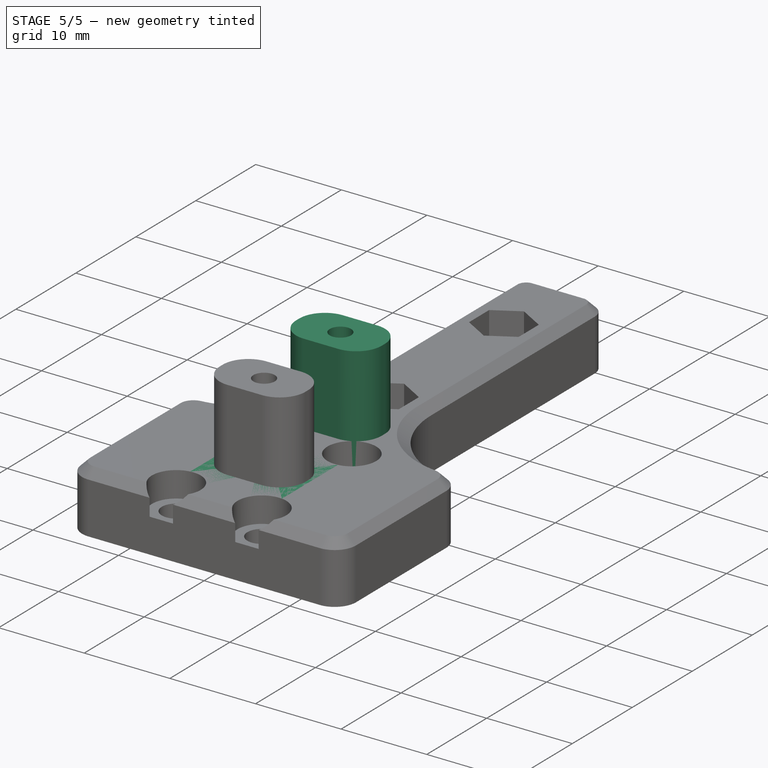
[diagram: stage 5 of 5 — iso view after this stage's code; geometry added in this stage tinted green]
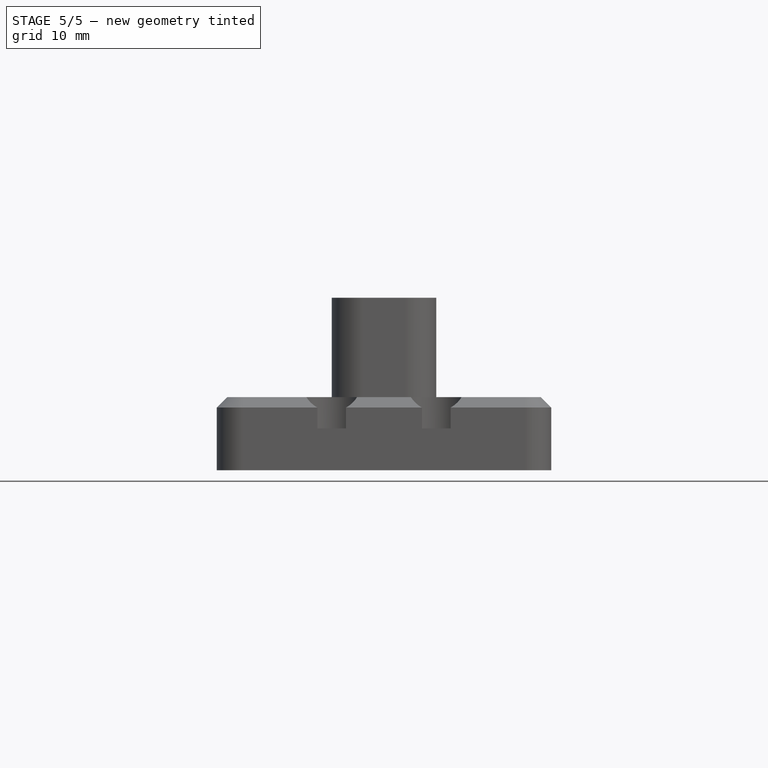
[diagram: stage 5 of 5 — front view after this stage's code; geometry added in this stage tinted green]
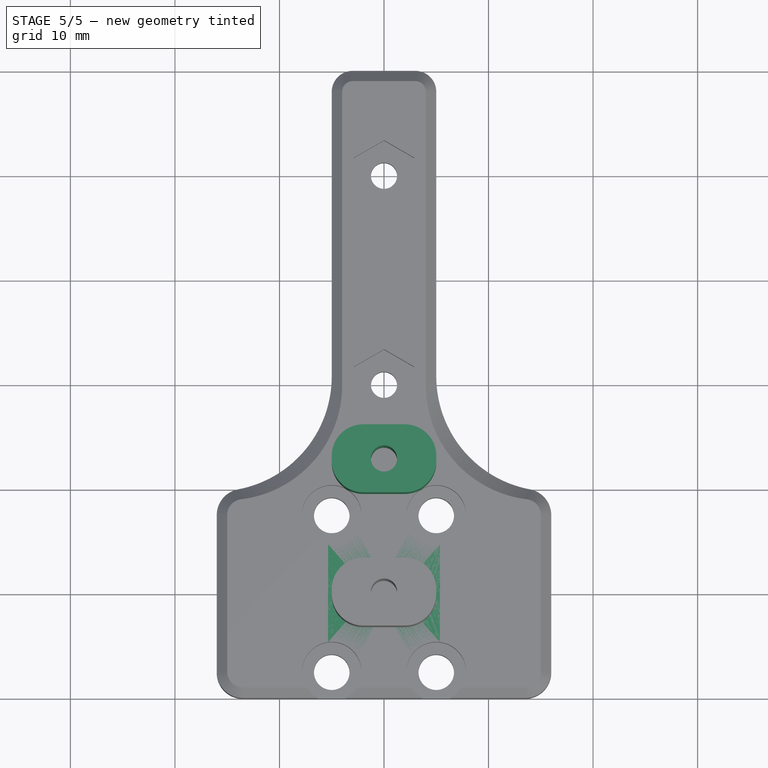
[diagram: stage 5 of 5 — top view after this stage's code; geometry added in this stage tinted green]
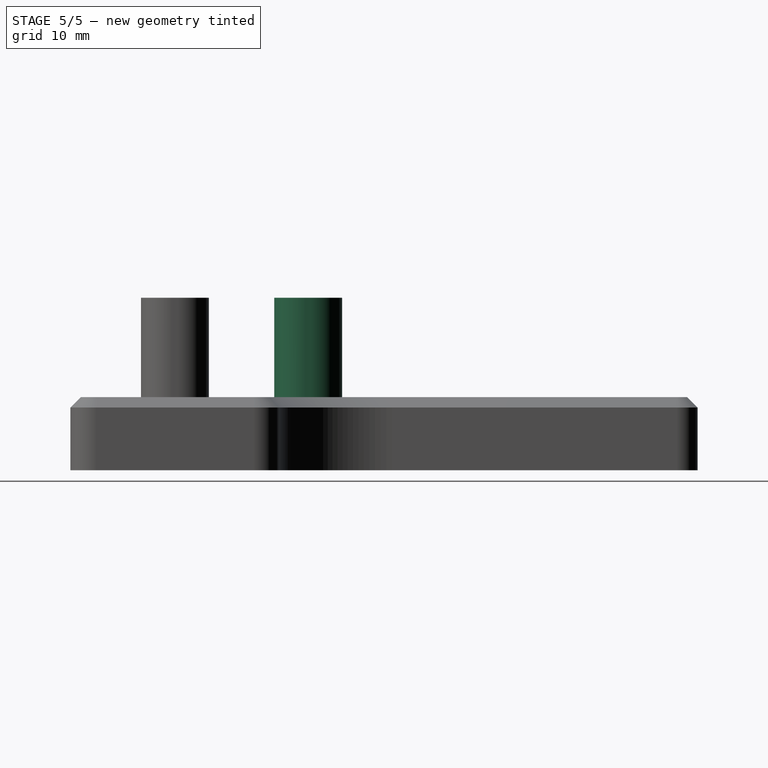
[diagram: stage 5 of 5 — right view after this stage's code; geometry added in this stage tinted green]
FEATURE [Sketcher::SketchObject] Sketch005
  FullyConstrained = true
  MapMode = 5
  Support = -> [XY_Plane004]
  sketch-geometry (12):
    g0: LineSegment StartX=-2 StartY=16 StartZ=0 EndX=2 EndY=16 EndZ=0
    g1: LineSegment StartX=5 StartY=13 StartZ=0 EndX=5 EndY=12.5 EndZ=0
    g2: LineSegment StartX=2 StartY=9.5 StartZ=0 EndX=-2 EndY=9.5 EndZ=0
    g3: LineSegment StartX=-5 StartY=12.5 StartZ=0 EndX=-5 EndY=13 EndZ=0
    g4: ArcOfCircle CenterX=-2 CenterY=13 CenterZ=0 NormalX=0 NormalY=0 NormalZ=1 AngleXU=0 Radius=3 StartAngle=1.5708 EndAngle=3.14159
    g5: GeomPoint X=-5 Y=16 Z=0
    g6: ArcOfCircle CenterX=2 CenterY=13 CenterZ=0 NormalX=0 NormalY=0 NormalZ=1 AngleXU=0 Radius=3 StartAngle=0 EndAngle=1.5708
    g7: GeomPoint X=5 Y=16 Z=0
    g8: ArcOfCircle CenterX=-2 CenterY=12.5 CenterZ=0 NormalX=0 NormalY=0 NormalZ=1 AngleXU=0 Radius=3 StartAngle=3.14159 EndAngle=4.71239
    g9: GeomPoint X=-5 Y=9.5 Z=0
    g10: ArcOfCircle CenterX=2 CenterY=12.5 CenterZ=0 NormalX=0 NormalY=0 NormalZ=1 AngleXU=0 Radius=3 StartAngle=4.71239 EndAngle=6.28319
    g11: GeomPoint X=5 Y=9.5 Z=0
  constraints (27):
    c: Horizontal(g0)
    c: Vertical(g1)
    c: Vertical(g3)
    c: PointOnObject(g5,g0)
    c: PointOnObject(g5,g3)
    c: Tangent(g0,g4) = 1.5708
    c: Tangent(g3,g4) = 1.5708
    c: PointOnObject(g7,g0)
    c: PointOnObject(g7,g1)
    c: Tangent(g0,g6) = 1.5708
    c: Tangent(g1,g6) = 1.5708
    c: PointOnObject(g9,g2)
    c: PointOnObject(g9,g3)
    c: Tangent(g2,g8) = 1.5708
    c: Tangent(g3,g8) = 1.5708
    c: PointOnObject(g11,g2)
    c: PointOnObject(g11,g1)
    c: Tangent(g2,g10) = 1.5708
    c: Tangent(g1,g10) = 1.5708
    c: Equal(g4,g6)
    c: Equal(g4,g10)
    c: Equal(g4,g8)
    c: Radius(g4) = 3
    c: DistanceY(g9,g5) = 6.5
    c: Symmetric(g9,g11,g-2)
    c: DistanceX(g9,g11) = 10
    c: DistanceY(g9) = 9.5
FEATURE [PartDesign::Pad] Pad001
  Direction = (0,0,1)
  Length = 16.5
  Length2 = 10
  Profile = -> Sketch005
  ReferenceAxis = -> Sketch005 [N_Axis]
  Type = 0
  expr: Length = <<Variables>>.CarriageThickness + <<Variables>>.WasherThickness * 2 + <<Variables>>.IdlerHeight
FEATURE [PartDesign::Body] Body  label="CarriageBaseMain"
  Group = -> [Sketch,Sketch001,Pad,AdditiveLoft,Sketch002,Hole,Sketch004,Hole001,Boolean]
  Origin = -> Origin001
  Tip = -> Boolean
FEATURE [App::Part] Part  label="CarriageBase"
  Group = -> [Body,Body001,Body007,Body006]
  Origin = -> Origin
FEATURE [Part::FeaturePython] Clone004  label="CarriageBaseMain001"  # Draft clone (typed FeaturePython)
  AttacherType = Attacher::AttachEngine3D
  Fuse = false
  Objects = -> [Body]
  Scale = (1,1,1)
FEATURE [PartDesign::Boolean] Boolean001
  BaseFeature = -> Pad001
  Group = -> [Clone004]
  Type = 0
FEATURE [PartDesign::ShapeBinder] ShapeBinder
  Support = -> [Body007]
  TraceSupport = false
FEATURE [PartDesign::ShapeBinder] ShapeBinder001
  Support = -> [Body006]
  TraceSupport = false
FEATURE [PartDesign::Boolean] Boolean003
  BaseFeature = -> Boolean001
  Group = -> [ShapeBinder001]
  Type = 1
FEATURE [PartDesign::Boolean] Boolean004
  BaseFeature = -> Boolean003
  Group = -> [ShapeBinder]
  Refine = true
  Type = 0
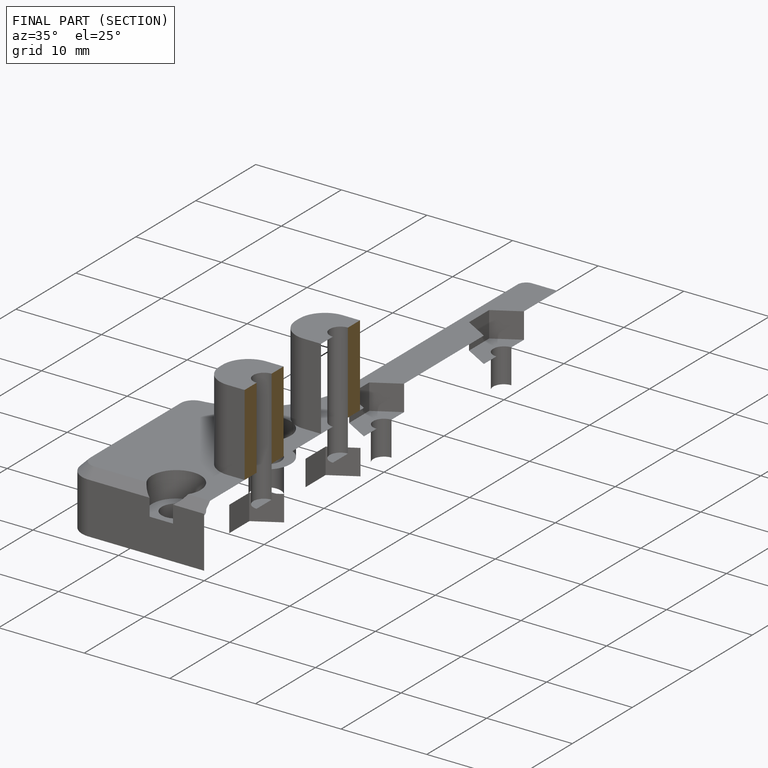
[diagram: finished part — half-section view (interior)]
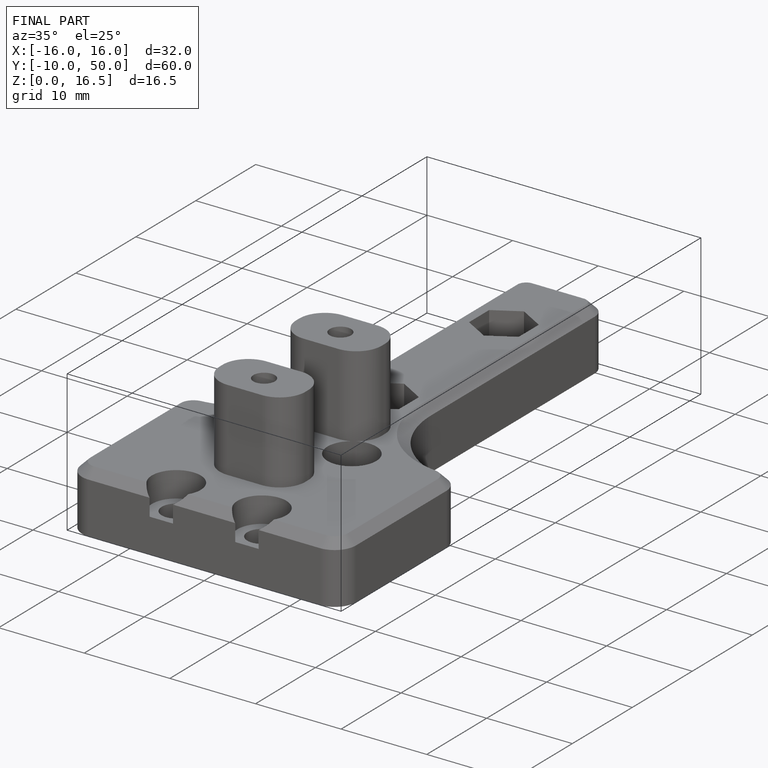
[diagram: finished part — iso view with bounding-box wireframe]
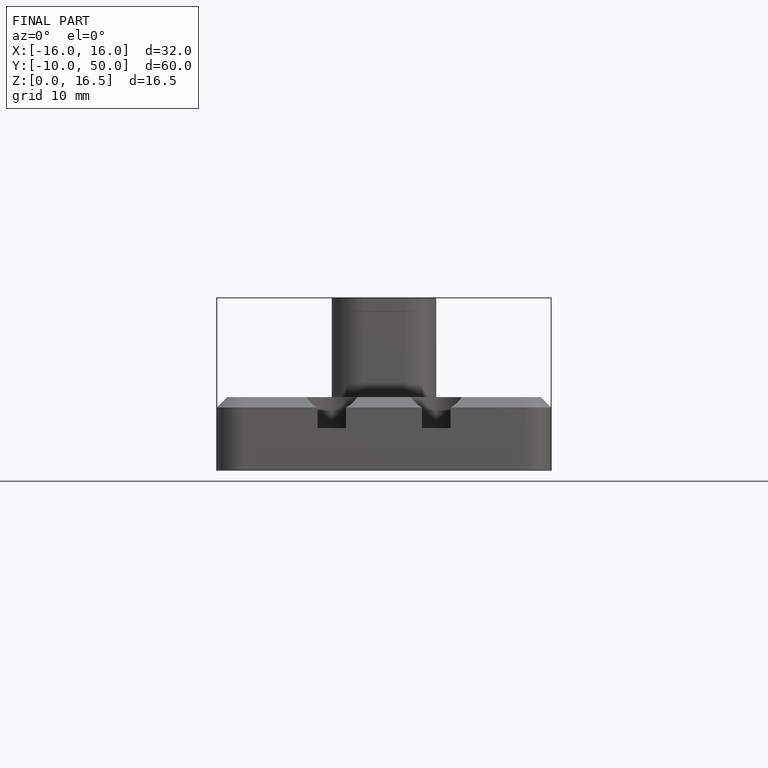
[diagram: finished part — front view with bounding-box wireframe]
